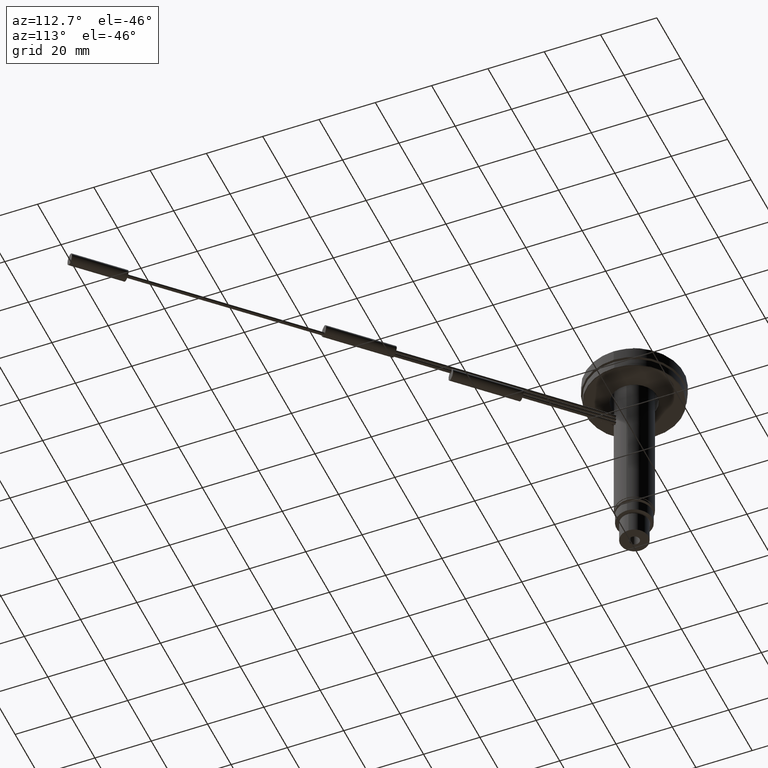
[diagram: clean part render]
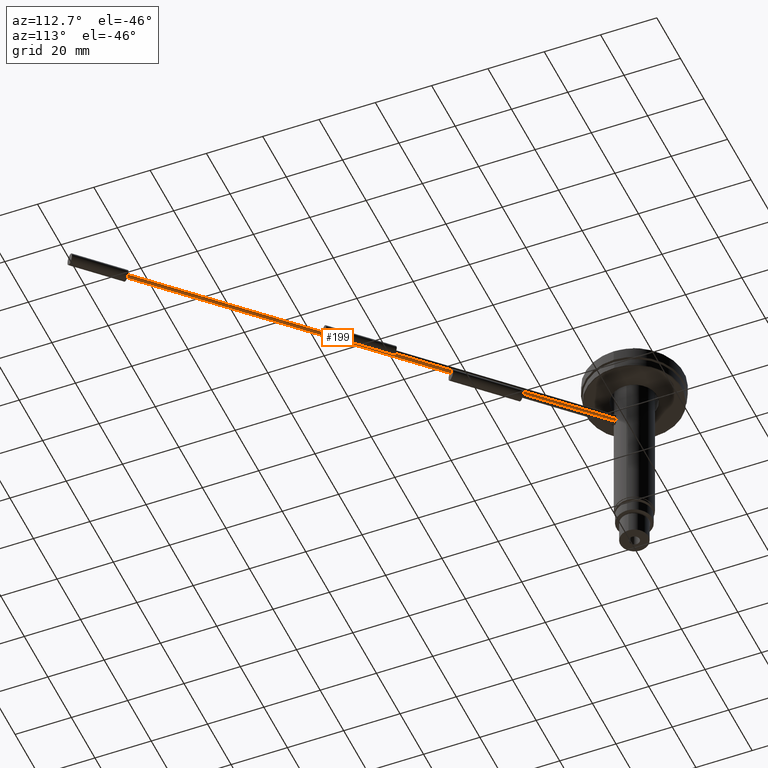
[diagram: same view with one face highlighted and labeled with its STEP entity id]
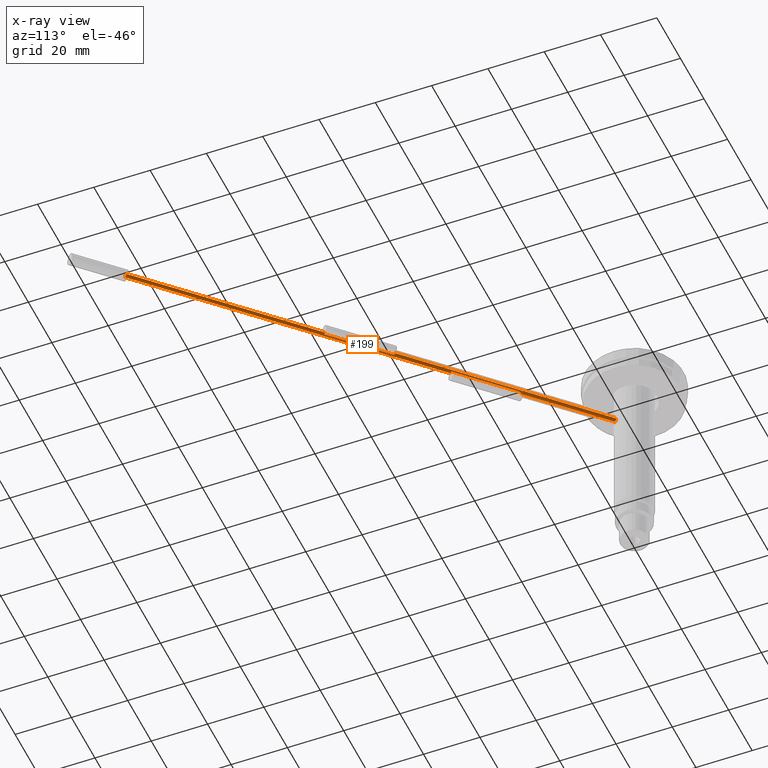
[diagram: x-ray of the same camera — body ghosted, the highlighted face saturated]
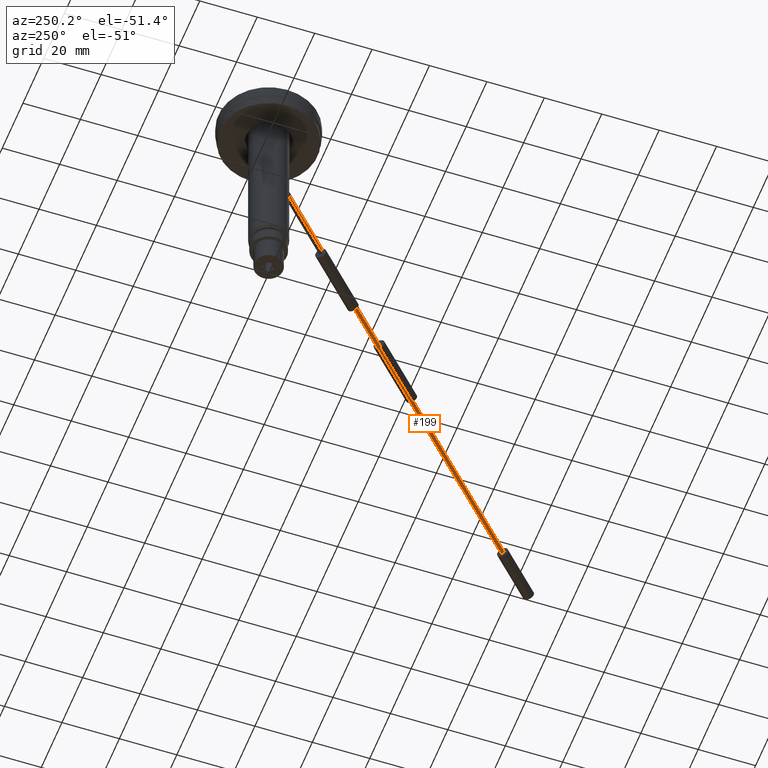
[diagram: same view with one face highlighted and labeled with its STEP entity id]
A machine part, auxiliary view. The second image highlights one B-rep face of the part: STEP entity #199.
The next image is the same camera in x-ray: the body ghosted, the highlighted face saturated — about 0% of this face is hidden behind the body in this view.
A second angle (auxiliary view) of the same face is appended — the face is thin or edge-on in the first view.
In plain terms, the highlighted cylindrical surface (bore or boss wall) has radius 0.6 mm, axis along (-0.7071, 0.7071, 0).
Its self-contained STEP definition (entity closure, byte-faithful):
#107=LINE('',#1682,#119);
#108=LINE('',#1687,#120);
#117=LINE('',#1965,#129);
#118=LINE('',#1970,#130);
#119=VECTOR('',#1169,1.);
#120=VECTOR('',#1172,1.);
#129=VECTOR('',#1461,1.);
#130=VECTOR('',#1464,1.);
#199=ADVANCED_FACE('',(#420,#421,#422,#423),#233,.T.);
#233=CYLINDRICAL_SURFACE('',#1146,0.6);
#311=CIRCLE('',#1139,0.6);
#312=CIRCLE('',#1141,0.6);
#313=CIRCLE('',#1143,0.6);
#314=CIRCLE('',#1144,0.6);
#315=CIRCLE('',#1145,0.6);
#420=FACE_BOUND('',#555,.T.);
#421=FACE_BOUND('',#556,.T.);
#422=FACE_BOUND('',#557,.T.);
#423=FACE_BOUND('',#558,.T.);
#555=EDGE_LOOP('',(#760,#761,#762,#763));
#556=EDGE_LOOP('',(#764,#765,#766,#767));
#557=EDGE_LOOP('',(#768));
#558=EDGE_LOOP('',(#769));
#760=ORIENTED_EDGE('',*,*,#976,.F.);
#761=ORIENTED_EDGE('',*,*,#977,.T.);
#762=ORIENTED_EDGE('',*,*,#978,.F.);
#763=ORIENTED_EDGE('',*,*,#979,.F.);
#764=ORIENTED_EDGE('',*,*,#974,.F.);
#765=ORIENTED_EDGE('',*,*,#883,.T.);
#766=ORIENTED_EDGE('',*,*,#975,.T.);
#767=ORIENTED_EDGE('',*,*,#885,.T.);
#768=ORIENTED_EDGE('',*,*,#878,.T.);
#769=ORIENTED_EDGE('',*,*,#980,.F.);
#790=VERTEX_POINT('',#1558);
#795=VERTEX_POINT('',#1683);
#796=VERTEX_POINT('',#1684);
#797=VERTEX_POINT('',#1686);
#798=VERTEX_POINT('',#1688);
#870=VERTEX_POINT('',#1966);
#871=VERTEX_POINT('',#1967);
#872=VERTEX_POINT('',#1969);
#873=VERTEX_POINT('',#1971);
#874=VERTEX_POINT('',#1974);
#878=EDGE_CURVE('',#790,#790,#986,.T.);
#883=EDGE_CURVE('',#795,#796,#107,.T.);
#885=EDGE_CURVE('',#798,#797,#108,.T.);
#974=EDGE_CURVE('',#795,#797,#311,.T.);
#975=EDGE_CURVE('',#796,#798,#312,.T.);
#976=EDGE_CURVE('',#870,#871,#117,.T.);
#977=EDGE_CURVE('',#870,#872,#313,.T.);
#978=EDGE_CURVE('',#873,#872,#118,.T.);
#979=EDGE_CURVE('',#871,#873,#314,.T.);
#980=EDGE_CURVE('',#874,#874,#315,.T.);
#986=B_SPLINE_CURVE_WITH_KNOTS('',3,(#1500,#1501,#1502,#1503,#1504,#1505,
#1506,#1507,#1508,#1509,#1510,#1511,#1512,#1513,#1514,#1515,#1516,#1517,
#1518,#1519,#1520,#1521,#1522,#1523,#1524,#1525,#1526,#1527,#1528,#1529,
#1530,#1531,#1532,#1533,#1534,#1535,#1536,#1537,#1538,#1539,#1540,#1541,
#1542,#1543,#1544,#1545,#1546,#1547,#1548,#1549,#1550,#1551,#1552,#1553,
#1554,#1555,#1556,#1557),.UNSPECIFIED.,.T.,.F.,(1,3,3,3,3,3,3,3,3,3,3,3,
3,3,3,3,3,3,3,3,3,1),(-0.0346522403765893,0.,0.0535599959946275,0.107110961370301,
0.160797288651025,0.214576664959368,0.268210527151096,0.321688295491676,
0.375241038550613,0.428983637632126,0.482736153422248,0.536301058189785,
0.58977423560765,0.643394022418883,0.697170322997006,0.750869254379597,
0.804378492957119,0.857880716957208,0.911568672134156,0.965347759623411,
1.,1.05355999599463),.UNSPECIFIED.);
#1139=AXIS2_PLACEMENT_3D('',#1961,#1453,#1454);
#1141=AXIS2_PLACEMENT_3D('',#1963,#1457,#1458);
#1143=AXIS2_PLACEMENT_3D('',#1968,#1462,#1463);
#1144=AXIS2_PLACEMENT_3D('',#1972,#1465,#1466);
#1145=AXIS2_PLACEMENT_3D('',#1973,#1467,#1468);
#1146=AXIS2_PLACEMENT_3D('',#1975,#1469,#1470);
#1169=DIRECTION('',(-0.707106781186548,0.707106781186547,0.));
#1172=DIRECTION('',(0.707106781186548,-0.707106781186547,0.));
#1453=DIRECTION('',(-0.707106781186548,0.707106781186547,0.));
#1454=DIRECTION('',(0.707106781186554,0.707106781186554,0.));
#1457=DIRECTION('',(-0.707106781186548,0.707106781186547,0.));
#1458=DIRECTION('',(0.707106781186543,0.707106781186543,0.));
#1461=DIRECTION('',(-0.707106781186548,0.707106781186547,0.));
#1462=DIRECTION('',(0.707106781186548,-0.707106781186547,0.));
#1463=DIRECTION('',(0.707106781186543,0.707106781186543,0.));
#1464=DIRECTION('',(0.707106781186548,-0.707106781186547,0.));
#1465=DIRECTION('',(0.707106781186548,-0.707106781186547,0.));
#1466=DIRECTION('',(0.707106781186549,0.707106781186549,0.));
#1467=DIRECTION('',(0.707106781186548,-0.707106781186547,0.));
#1468=DIRECTION('',(-0.707106781186554,-0.707106781186554,0.));
#1469=DIRECTION('',(-0.707106781186548,0.707106781186547,0.));
#1470=DIRECTION('',(-0.707106781186554,-0.707106781186554,0.));
#1500=CARTESIAN_POINT('',(4.32981312881022,-5.17834126623408,-23.9));
#1501=CARTESIAN_POINT('',(4.32981312881022,-5.17834126623408,-23.9670064301583));
#1502=CARTESIAN_POINT('',(4.33872451259777,-5.17092471646893,-24.0349362918585));
#1503=CARTESIAN_POINT('',(4.35568364499967,-5.15659965332606,-24.0981584563002));
#1504=CARTESIAN_POINT('',(4.37264115143551,-5.14227596360645,-24.1613745592823));
#1505=CARTESIAN_POINT('',(4.39809667090228,-5.12064397715602,-24.2216259393455));
#1506=CARTESIAN_POINT('',(4.42965326392806,-5.0931985982653,-24.2739703125111));
#1507=CARTESIAN_POINT('',(4.46128832944362,-5.06568497033347,-24.326444851607));
#1508=CARTESIAN_POINT('',(4.4999104689927,-5.03155474915368,-24.3724206802881));
#1509=CARTESIAN_POINT('',(4.54200065520222,-4.99326847346933,-24.4081128596072));
#1510=CARTESIAN_POINT('',(4.58415942876994,-4.95491980902548,-24.4438632005195));
#1511=CARTESIAN_POINT('',(4.63095199477887,-4.91132248371356,-24.470281159596));
#1512=CARTESIAN_POINT('',(4.67824938845985,-4.8658486062942,-24.4851523448932));
#1513=CARTESIAN_POINT('',(4.72541987267493,-4.82049674543953,-24.4999836274803));
#1514=CARTESIAN_POINT('',(4.77439013846134,-4.77201657916404,-24.5037371452256));
#1515=CARTESIAN_POINT('',(4.82104559987273,-4.72440676952651,-24.496096022663));
#1516=CARTESIAN_POINT('',(4.86757052131182,-4.67693017008653,-24.4884762796324));
#1517=CARTESIAN_POINT('',(4.91307817740423,-4.62901641525087,-24.4693203699528));
#1518=CARTESIAN_POINT('',(4.95400222717407,-4.58479682572243,-24.4402255878515));
#1519=CARTESIAN_POINT('',(4.99498479268788,-4.54051400828292,-24.4110892042266));
#1520=CARTESIAN_POINT('',(5.03251155530978,-4.49873001989826,-24.3711891531049));
#1521=CARTESIAN_POINT('',(5.06383622556902,-4.46318974284256,-24.3238064433137));
#1522=CARTESIAN_POINT('',(5.09526882254384,-4.42752701452588,-24.2762604800803));
#1523=CARTESIAN_POINT('',(5.12133985036414,-4.39718394516673,-24.2198657796859));
#1524=CARTESIAN_POINT('',(5.14021989747712,-4.37500164635173,-24.1592691922931));
#1525=CARTESIAN_POINT('',(5.15910203567868,-4.35281689070221,-24.0986658934323));
#1526=CARTESIAN_POINT('',(5.17132424059313,-4.33819774053932,-24.0321784926327));
#1527=CARTESIAN_POINT('',(5.17604256702156,-4.33256082985351,-23.9653397239969));
#1528=CARTESIAN_POINT('',(5.18074475081457,-4.32694320452143,-23.8987296283644));
#1529=CARTESIAN_POINT('',(5.17812749912989,-4.33009534818066,-23.8299315846175));
#1530=CARTESIAN_POINT('',(5.16837006174347,-4.34171059662824,-23.7646594503938));
#1531=CARTESIAN_POINT('',(5.15862832649702,-4.35330715325647,-23.6994923552441));
#1532=CARTESIAN_POINT('',(5.1414977870851,-4.37364637575261,-23.6360473592978));
#1533=CARTESIAN_POINT('',(5.11815294361674,-4.40079656945733,-23.5795317235257));
#1534=CARTESIAN_POINT('',(5.09474463607562,-4.42802057226132,-23.5228624472964));
#1535=CARTESIAN_POINT('',(5.06443075409757,-4.46282495707599,-23.4715991423169));
#1536=CARTESIAN_POINT('',(5.02935668339147,-4.50200748013879,-23.4299453128471));
#1537=CARTESIAN_POINT('',(4.99418420988582,-4.5412999325564,-23.3881746205967));
#1538=CARTESIAN_POINT('',(4.9532338519406,-4.58606773506539,-23.3549156940318));
#1539=CARTESIAN_POINT('',(4.90959846721883,-4.63231506815789,-23.3329400752102));
#1540=CARTESIAN_POINT('',(4.86602703661761,-4.67849461893256,-23.3109966649135));
#1541=CARTESIAN_POINT('',(4.81856059604697,-4.72741855801883,-23.2997008267163));
#1542=CARTESIAN_POINT('',(4.7710417195123,-4.77489904717087,-23.3000061996056));
#1543=CARTESIAN_POINT('',(4.72368590560334,-4.82221660542479,-23.3003105245976));
#1544=CARTESIAN_POINT('',(4.67497339107114,-4.86940500316651,-23.3121426392884));
#1545=CARTESIAN_POINT('',(4.62905079841893,-4.91267632820006,-23.334510584159));
#1546=CARTESIAN_POINT('',(4.58313096080438,-4.95594505725366,-23.3568771871078));
#1547=CARTESIAN_POINT('',(4.53874810439043,-4.99649797666823,-23.390387249672));
#1548=CARTESIAN_POINT('',(4.49982829795764,-5.03130651907631,-23.4322763099454));
#1549=CARTESIAN_POINT('',(4.46077603372946,-5.06623352720174,-23.4743079334298));
#1550=CARTESIAN_POINT('',(4.42616337388461,-5.09635585967287,-23.5259339047537));
#1551=CARTESIAN_POINT('',(4.39918492126837,-5.11953826321136,-23.582910846329));
#1552=CARTESIAN_POINT('',(4.37216346195095,-5.14275762211996,-23.6399786155858));
#1553=CARTESIAN_POINT('',(4.35207130471317,-5.15966961179893,-23.7039977150746));
#1554=CARTESIAN_POINT('',(4.34083881049648,-5.16910228388718,-23.7696550372151));
#1555=CARTESIAN_POINT('',(4.3335405509151,-5.17523111761885,-23.8123155693423));
#1556=CARTESIAN_POINT('',(4.32981312881022,-5.17834126623408,-23.8562878941573));
#1557=CARTESIAN_POINT('',(4.32981312881022,-5.17834126623408,-23.9));
#1558=CARTESIAN_POINT('',(4.32981312881022,-5.17834126623408,-23.9));
#1682=CARTESIAN_POINT('',(65.3793989155606,-65.9185134158705,-24.3633333333333));
#1683=CARTESIAN_POINT('',(77.5121886803653,-78.0513031806752,-24.3633333333333));
#1684=CARTESIAN_POINT('',(59.8345191507016,-60.3736336510115,-24.3633333333333));
#1686=CARTESIAN_POINT('',(78.0513031806752,-77.5121886803652,-24.3633333333333));
#1687=CARTESIAN_POINT('',(65.9185134158706,-65.3793989155606,-24.3633333333333));
#1688=CARTESIAN_POINT('',(60.3736336510115,-59.8345191507016,-24.3633333333333));
#1961=CARTESIAN_POINT('',(77.7817459305203,-77.7817459305202,-23.9));
#1963=CARTESIAN_POINT('',(60.1040764008566,-60.1040764008565,-23.9));
#1965=CARTESIAN_POINT('',(36.8535487621388,-37.3926632624487,-23.4366666666667));
#1966=CARTESIAN_POINT('',(45.6923835269706,-46.2314980272806,-23.4366666666667));
#1967=CARTESIAN_POINT('',(28.0147139973069,-28.5538284976169,-23.4366666666667));
#1968=CARTESIAN_POINT('',(45.9619407771256,-45.9619407771256,-23.9));
#1969=CARTESIAN_POINT('',(46.2314980272806,-45.6923835269706,-23.4366666666667));
#1970=CARTESIAN_POINT('',(37.3926632624487,-36.8535487621388,-23.4366666666667));
#1971=CARTESIAN_POINT('',(28.5538284976169,-28.0147139973069,-23.4366666666667));
#1972=CARTESIAN_POINT('',(28.2842712474619,-28.2842712474619,-23.9));
#1973=CARTESIAN_POINT('',(127.279220613579,-127.279220613578,-23.9));
#1974=CARTESIAN_POINT('',(126.854956544867,-127.70348468229,-23.9));
#1975=CARTESIAN_POINT('',(127.279220613579,-127.279220613578,-23.9));